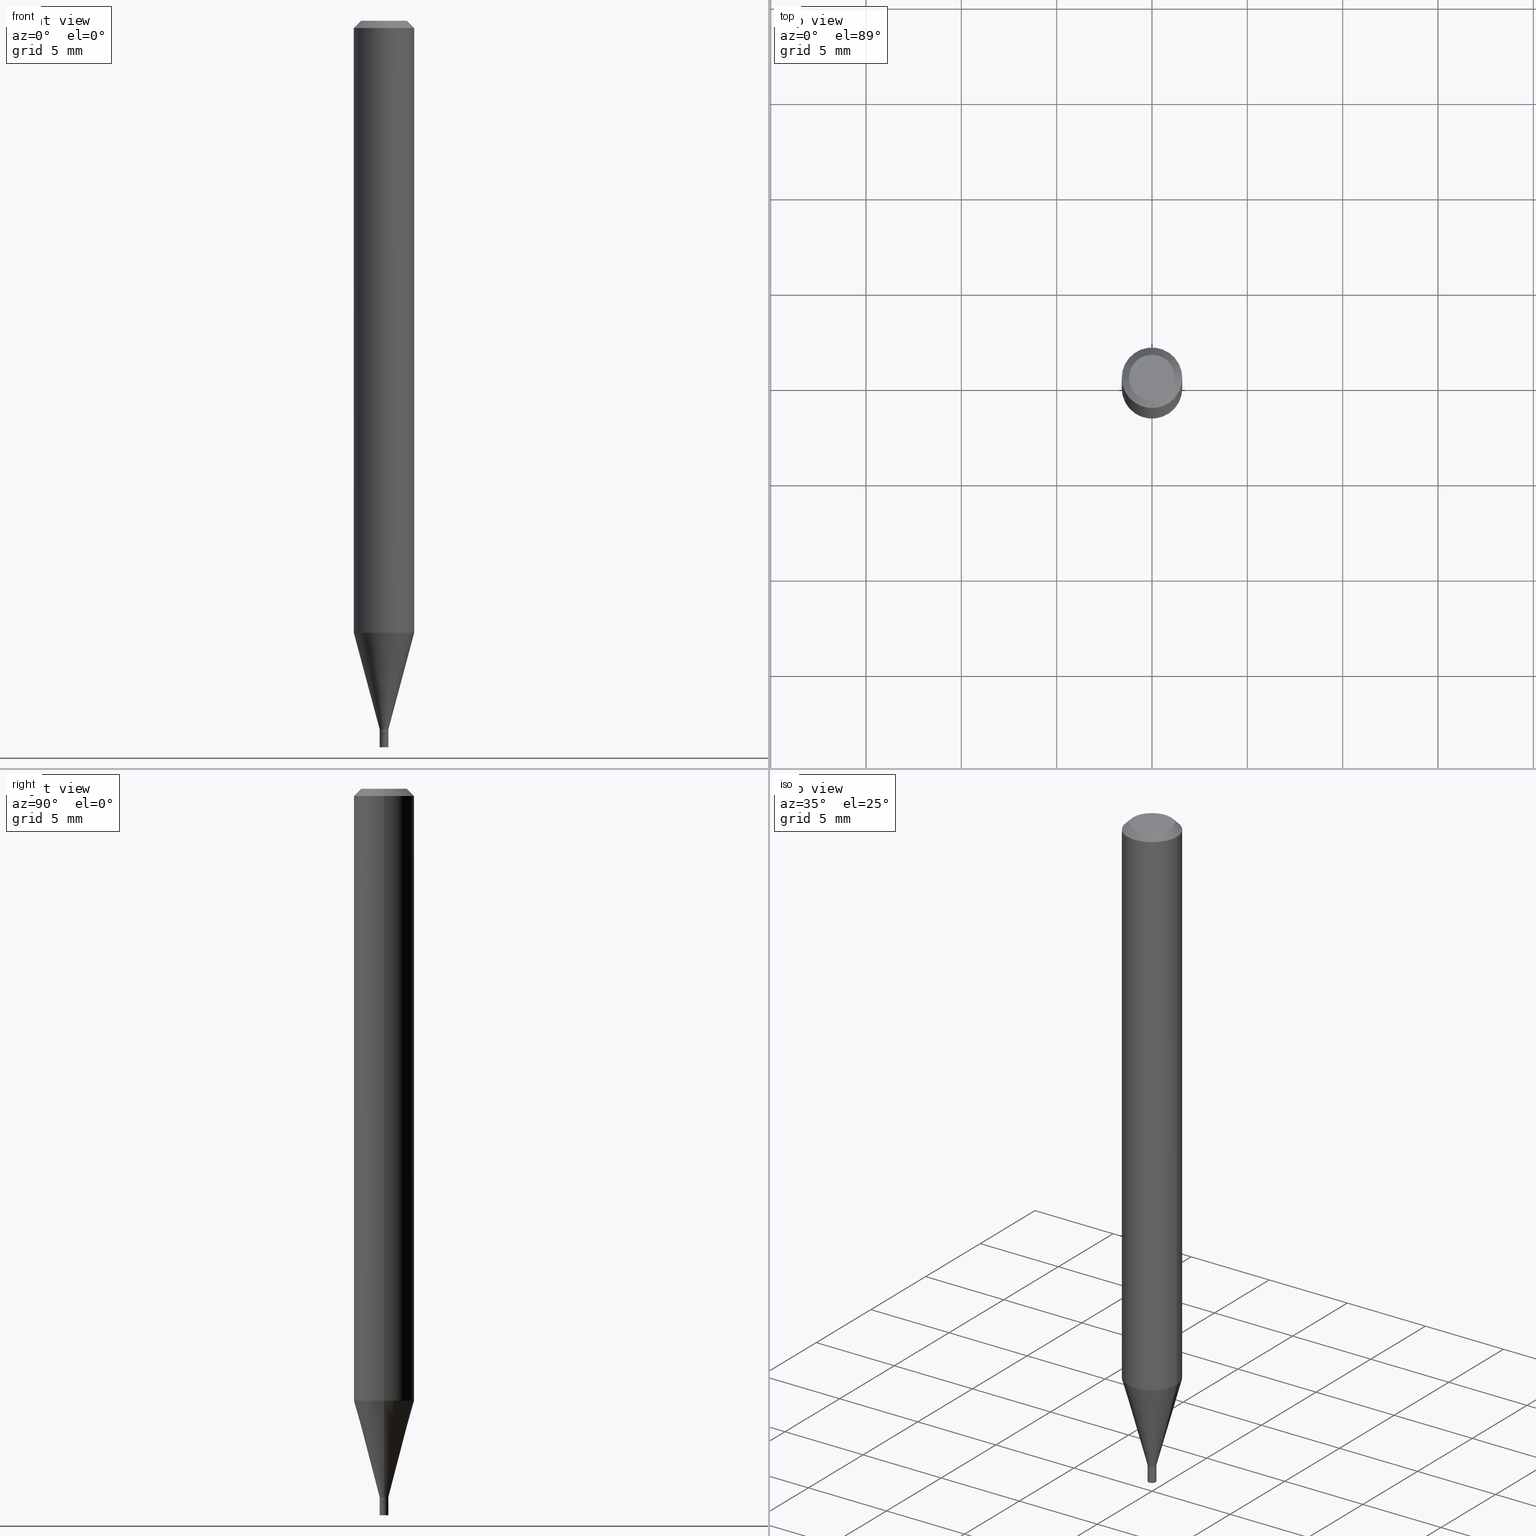
[diagram: canonical four-view strip — front | top / right | iso, engineering-drawing reading convention]
A machine part, canonical four-view strip (front | top / right | iso — engineering-drawing reading convention). The complete STEP part file that produces these views, byte-faithful:
ISO-10303-21;
HEADER;
FILE_DESCRIPTION (( 'STEP AP203' ),
    '1' );
FILE_NAME ('02251.STEP',
    '2024-03-18T19:57:12',
    ( '' ),
    ( '' ),
    'SwSTEP 2.0',
    'SolidWorks 2023',
    '' );
FILE_SCHEMA (( 'CONFIG_CONTROL_DESIGN' ));
ENDSEC;

DATA;
#1 = ORIENTED_EDGE ( 'NONE', *, *, #432, .F. ) ;
#2 = DIRECTION ( 'NONE',  ( -2.445468806185136597E-29, 3.491481338843145583E-15, 1.000000000000000000 ) ) ;
#3 = DIRECTION ( 'NONE',  ( 1.000000000000000000, -6.982962677686276177E-15, 0.000000000000000000 ) ) ;
#4 = DIRECTION ( 'NONE',  ( -1.000000000000000000, 6.982962677686265922E-15, -4.876176775795935793E-29 ) ) ;
#5 = VERTEX_POINT ( 'NONE', #374 ) ;
#6 = DIRECTION ( 'NONE',  ( -2.445468806185136597E-29, 3.491481338843145583E-15, 1.000000000000000000 ) ) ;
#7 = EDGE_CURVE ( 'NONE', #109, #226, #17, .T. ) ;
#8 = VERTEX_POINT ( 'NONE', #448 ) ;
#9 = AXIS2_PLACEMENT_3D ( 'NONE', #424, #153, #295 ) ;
#10 = AXIS2_PLACEMENT_3D ( 'NONE', #135, #131, #338 ) ;
#11 = DIRECTION ( 'NONE',  ( -2.445468806185136597E-29, 3.491481338843145583E-15, 1.000000000000000000 ) ) ;
#12 = ORIENTED_EDGE ( 'NONE', *, *, #249, .F. ) ;
#13 = EDGE_LOOP ( 'NONE', ( #299, #115, #430, #48 ) ) ;
#14 = CARTESIAN_POINT ( 'NONE',  ( 3.602175551510706507E-29, -5.142952012115953829E-15, -1.473000000000000087 ) ) ;
#15 = EDGE_CURVE ( 'NONE', #228, #36, #377, .T. ) ;
#16 = LINE ( 'NONE', #305, #409 ) ;
#17 = LINE ( 'NONE', #22, #402 ) ;
#18 = CARTESIAN_POINT ( 'NONE',  ( 3.602175551510706507E-29, -5.142952012115953829E-15, -1.473000000000000087 ) ) ;
#19 = ORIENTED_EDGE ( 'NONE', *, *, #187, .F. ) ;
#20 = CYLINDRICAL_SURFACE ( 'NONE', #300, 0.008999999999999999320 ) ;
#21 = VERTEX_POINT ( 'NONE', #136 ) ;
#22 = CARTESIAN_POINT ( 'NONE',  ( 0.008999999999999999320, -6.284666409917639645E-17, 4.388559098216341408E-31 ) ) ;
#23 = CALENDAR_DATE ( 2024, 18, 3 ) ;
#24 = AXIS2_PLACEMENT_3D ( 'NONE', #322, #34, #87 ) ;
#25 = DIRECTION ( 'NONE',  ( -2.445468806185136877E-29, 3.491481338843145188E-15, 1.000000000000000000 ) ) ;
#26 = EDGE_LOOP ( 'NONE', ( #321, #76, #117, #78 ) ) ;
#27 = CONICAL_SURFACE ( 'NONE', #375, 0.06250000000000000000, 0.7853981633974193022 ) ;
#28 = DIRECTION ( 'NONE',  ( 1.000000000000000000, 0.000000000000000000, 0.000000000000000000 ) ) ;
#29 = EDGE_CURVE ( 'NONE', #202, #198, #373, .T. ) ;
#30 = CALENDAR_DATE ( 2024, 18, 3 ) ;
#31 = VECTOR ( 'NONE', #113, 39.37007874015748143 ) ;
#32 = CC_DESIGN_APPROVAL ( #150, ( #232 ) ) ;
#33 = ORIENTED_EDGE ( 'NONE', *, *, #93, .T. ) ;
#34 = DIRECTION ( 'NONE',  ( -2.445468806185136597E-29, 3.491481338843145583E-15, 1.000000000000000000 ) ) ;
#35 = ORIENTED_EDGE ( 'NONE', *, *, #15, .F. ) ;
#36 = VERTEX_POINT ( 'NONE', #406 ) ;
#37 = CARTESIAN_POINT ( 'NONE',  ( 0.000000000000000000, 0.000000000000000000, 0.000000000000000000 ) ) ;
#38 = AXIS2_PLACEMENT_3D ( 'NONE', #264, #339, #267 ) ;
#39 = ORIENTED_EDGE ( 'NONE', *, *, #248, .F. ) ;
#40 = ADVANCED_FACE ( 'NONE', ( #60 ), #195, .T. ) ;
#41 = DESIGN_CONTEXT ( 'detailed design', #304, 'design' ) ;
#42 = ADVANCED_FACE ( 'NONE', ( #327 ), #58, .T. ) ;
#43 = CARTESIAN_POINT ( 'NONE',  ( 0.06250000000000000000, -4.847346728445009971E-15, -1.263335281795065601 ) ) ;
#44 = DIRECTION ( 'NONE',  ( 1.000000000000000000, -6.982962677686276177E-15, 0.000000000000000000 ) ) ;
#45 = CARTESIAN_POINT ( 'NONE',  ( 6.284666409921241288E-17, 0.008999999999994855865, -1.473000000000000087 ) ) ;
#46 = ORIENTED_EDGE ( 'NONE', *, *, #354, .T. ) ;
#47 = EDGE_CURVE ( 'NONE', #226, #5, #318, .T. ) ;
#48 = ORIENTED_EDGE ( 'NONE', *, *, #452, .F. ) ;
#49 = DIRECTION ( 'NONE',  ( 1.000000000000000000, -6.982962677686266711E-15, 0.000000000000000000 ) ) ;
#50 = EDGE_CURVE ( 'NONE', #8, #198, #460, .T. ) ;
#51 = VECTOR ( 'NONE', #427, 39.37007874015748143 ) ;
#52 = AXIS2_PLACEMENT_3D ( 'NONE', #55, #302, #308 ) ;
#53 = DIRECTION ( 'NONE',  ( -1.000000000000000000, 6.982962677686266711E-15, 0.000000000000000000 ) ) ;
#54 = CC_DESIGN_PERSON_AND_ORGANIZATION_ASSIGNMENT ( #201, #312, ( #232 ) ) ;
#55 = CARTESIAN_POINT ( 'NONE',  ( 3.668203209277704895E-29, -5.237222008264718177E-15, -1.500000000000000222 ) ) ;
#56 = CIRCLE ( 'NONE', #97, 0.008999999999999919523 ) ;
#57 = EDGE_CURVE ( 'NONE', #333, #202, #453, .T. ) ;
#58 = CONICAL_SURFACE ( 'NONE', #382, 0.008499999999999998876, 0.7853981633974718157 ) ;
#59 = CARTESIAN_POINT ( 'NONE',  ( 0.008499999999999998876, -5.202307194876286528E-15, -1.473000000000000087 ) ) ;
#60 = FACE_OUTER_BOUND ( 'NONE', #359, .T. ) ;
#61 = CYLINDRICAL_SURFACE ( 'NONE', #297, 0.06250000000000000000 ) ;
#62 = DIRECTION ( 'NONE',  ( 0.2588190451025214611, 1.565188264969621573E-15, 0.9659258262890682012 ) ) ;
#63 = CARTESIAN_POINT ( 'NONE',  ( 3.602175551510706507E-29, -5.142952012115953829E-15, -1.473000000000000087 ) ) ;
#64 = APPROVAL_STATUS ( 'not_yet_approved' ) ;
#65 = AXIS2_PLACEMENT_3D ( 'NONE', #317, #169, #314 ) ;
#66 = ORIENTED_EDGE ( 'NONE', *, *, #292, .T. ) ;
#67 =( GEOMETRIC_REPRESENTATION_CONTEXT ( 3 ) GLOBAL_UNCERTAINTY_ASSIGNED_CONTEXT ( ( #145 ) ) GLOBAL_UNIT_ASSIGNED_CONTEXT ( ( #341, #237, #283 ) ) REPRESENTATION_CONTEXT ( 'NONE', 'WORKASPACE' ) );
#68 = PERSON_AND_ORGANIZATION ( #184, #209 ) ;
#69 = ORIENTED_EDGE ( 'NONE', *, *, #105, .F. ) ;
#70 = APPROVAL_ROLE ( '' ) ;
#71 = EDGE_LOOP ( 'NONE', ( #391, #46, #458, #262 ) ) ;
#72 = EDGE_CURVE ( 'NONE', #228, #358, #282, .T. ) ;
#73 = APPROVAL_PERSON_ORGANIZATION ( #416, #337, #200 ) ;
#74 = CARTESIAN_POINT ( 'NONE',  ( -2.134895384516535384E-44, 3.048064803185854466E-30, 8.730004566473750758E-16 ) ) ;
#75 = ORIENTED_EDGE ( 'NONE', *, *, #357, .T. ) ;
#76 = ORIENTED_EDGE ( 'NONE', *, *, #15, .T. ) ;
#77 = LINE ( 'NONE', #429, #51 ) ;
#78 = ORIENTED_EDGE ( 'NONE', *, *, #180, .F. ) ;
#79 = ORIENTED_EDGE ( 'NONE', *, *, #203, .T. ) ;
#80 = CYLINDRICAL_SURFACE ( 'NONE', #334, 0.008999999999999919523 ) ;
#81 = AXIS2_PLACEMENT_3D ( 'NONE', #422, #392, #215 ) ;
#82 = CC_DESIGN_SECURITY_CLASSIFICATION ( #261, ( #232 ) ) ;
#83 = CARTESIAN_POINT ( 'NONE',  ( 3.600952817107613706E-29, -5.141206271446532325E-15, -1.472500000000000142 ) ) ;
#84 = CARTESIAN_POINT ( 'NONE',  ( 3.602175551510706507E-29, -5.142952012115953829E-15, -1.473000000000000087 ) ) ;
#85 = ORIENTED_EDGE ( 'NONE', *, *, #394, .F. ) ;
#86 = ADVANCED_FACE ( 'NONE', ( #164 ), #95, .F. ) ;
#87 = DIRECTION ( 'NONE',  ( 1.000000000000000000, -6.982962677686288010E-15, 0.000000000000000000 ) ) ;
#88 = DIRECTION ( 'NONE',  ( 1.000000000000000000, -6.982962677686225690E-15, 0.000000000000000000 ) ) ;
#89 = CARTESIAN_POINT ( 'NONE',  ( 0.008999999999999921257, -5.204052935545708031E-15, -1.472500000000000142 ) ) ;
#90 = ADVANCED_FACE ( 'NONE', ( #137 ), #61, .T. ) ;
#91 = CIRCLE ( 'NONE', #347, 0.008999999999999921257 ) ;
#92 = DIRECTION ( 'NONE',  ( 1.000000000000000000, -6.982962677686288010E-15, 0.000000000000000000 ) ) ;
#93 = EDGE_CURVE ( 'NONE', #255, #210, #129, .T. ) ;
#94 = LINE ( 'NONE', #234, #99 ) ;
#95 = PLANE ( 'NONE',  #287 ) ;
#96 = DIRECTION ( 'NONE',  ( 1.000000000000000000, -6.982962677686266711E-15, 4.876176775795936914E-29 ) ) ;
#97 = AXIS2_PLACEMENT_3D ( 'NONE', #390, #2, #111 ) ;
#98 = ADVANCED_FACE ( 'NONE', ( #385 ), #208, .T. ) ;
#99 = VECTOR ( 'NONE', #62, 39.37007874015747433 ) ;
#100 = CYLINDRICAL_SURFACE ( 'NONE', #155, 0.008999999999999919523 ) ;
#101 = DIRECTION ( 'NONE',  ( -2.438088387897960049E-29, 3.491481338843145188E-15, 1.000000000000000000 ) ) ;
#102 = DATE_AND_TIME ( #172, #311 ) ;
#103 = DATE_AND_TIME ( #412, #441 ) ;
#104 = DIRECTION ( 'NONE',  ( -2.445468806185136597E-29, 3.491481338843145583E-15, 1.000000000000000000 ) ) ;
#105 = EDGE_CURVE ( 'NONE', #5, #226, #324, .T. ) ;
#106 = PERSON_AND_ORGANIZATION_ROLE ( 'design_owner' ) ;
#107 = VECTOR ( 'NONE', #326, 39.37007874015747433 ) ;
#108 = COORDINATED_UNIVERSAL_TIME_OFFSET ( 5, 0, .BEHIND. ) ;
#109 = VERTEX_POINT ( 'NONE', #148 ) ;
#110 = VERTEX_POINT ( 'NONE', #236 ) ;
#111 = DIRECTION ( 'NONE',  ( 1.000000000000000000, -6.982962677686288010E-15, 0.000000000000000000 ) ) ;
#112 = AXIS2_PLACEMENT_3D ( 'NONE', #83, #225, #257 ) ;
#113 = DIRECTION ( 'NONE',  ( -2.445468806185136877E-29, 3.491481338843145188E-15, 1.000000000000000000 ) ) ;
#114 = LOCAL_TIME ( 15, 57, 12.00000000000000000, #139 ) ;
#115 = ORIENTED_EDGE ( 'NONE', *, *, #284, .T. ) ;
#116 = LINE ( 'NONE', #181, #107 ) ;
#117 = ORIENTED_EDGE ( 'NONE', *, *, #268, .T. ) ;
#118 = DIRECTION ( 'NONE',  ( 1.000000000000000000, -6.982962677686266711E-15, 4.876176775795935793E-29 ) ) ;
#119 = DIRECTION ( 'NONE',  ( 2.438088387897960049E-29, -3.491481338843145188E-15, -1.000000000000000000 ) ) ;
#120 = DIRECTION ( 'NONE',  ( -2.445468806185136877E-29, 3.491481338843145188E-15, 1.000000000000000000 ) ) ;
#121 = ORIENTED_EDGE ( 'NONE', *, *, #292, .F. ) ;
#122 = AXIS2_PLACEMENT_3D ( 'NONE', #45, #119, #4 ) ;
#123 = EDGE_LOOP ( 'NONE', ( #417, #179 ) ) ;
#124 = FACE_OUTER_BOUND ( 'NONE', #461, .T. ) ;
#125 = ORIENTED_EDGE ( 'NONE', *, *, #224, .T. ) ;
#126 = CARTESIAN_POINT ( 'NONE',  ( 3.089447023382941681E-29, -4.410911561089617513E-15, -1.263335281795065601 ) ) ;
#127 = DIRECTION ( 'NONE',  ( 1.000000000000000000, -6.982962677686262766E-15, 0.000000000000000000 ) ) ;
#128 = EDGE_CURVE ( 'NONE', #198, #202, #56, .T. ) ;
#129 = CIRCLE ( 'NONE', #65, 0.06250000000000000000 ) ;
#130 = LOCAL_TIME ( 15, 57, 12.00000000000000000, #316 ) ;
#131 = DIRECTION ( 'NONE',  ( -2.445468806185136597E-29, 3.491481338843145583E-15, 1.000000000000000000 ) ) ;
#132 = ADVANCED_FACE ( 'NONE', ( #286 ), #463, .T. ) ;
#133 = EDGE_CURVE ( 'NONE', #358, #228, #343, .T. ) ;
#134 = MANIFOLD_SOLID_BREP ( 'Body-Move/Copy2[1]', #239 ) ;
#135 = CARTESIAN_POINT ( 'NONE',  ( 3.668203209277704895E-29, -5.237222008264718177E-15, -1.500000000000000222 ) ) ;
#136 = CARTESIAN_POINT ( 'NONE',  ( 0.008499999999999998876, -5.202307194876286528E-15, -1.473000000000000087 ) ) ;
#137 = FACE_OUTER_BOUND ( 'NONE', #199, .T. ) ;
#138 = CARTESIAN_POINT ( 'NONE',  ( 3.602175551510706507E-29, -5.142952012115953829E-15, -1.473000000000000087 ) ) ;
#139 = COORDINATED_UNIVERSAL_TIME_OFFSET ( 5, 0, .BEHIND. ) ;
#140 = PERSON_AND_ORGANIZATION_ROLE ( 'classification_officer' ) ;
#141 = CALENDAR_DATE ( 2024, 18, 3 ) ;
#142 = AXIS2_PLACEMENT_3D ( 'NONE', #380, #194, #276 ) ;
#143 = CC_DESIGN_PERSON_AND_ORGANIZATION_ASSIGNMENT ( #167, #457, ( #232 ) ) ;
#144 = DIRECTION ( 'NONE',  ( 1.000000000000000000, -6.982962677686266711E-15, 4.876176775795936914E-29 ) ) ;
#145 = UNCERTAINTY_MEASURE_WITH_UNIT (LENGTH_MEASURE( 1.000000000000000082E-05 ), #341, 'distance_accuracy_value', 'NONE');
#146 = DIRECTION ( 'NONE',  ( 1.000000000000000000, -6.982962677686286432E-15, 0.000000000000000000 ) ) ;
#147 = CIRCLE ( 'NONE', #269, 0.06250000000000000000 ) ;
#148 = CARTESIAN_POINT ( 'NONE',  ( 0.008999999999999999320, -5.300068672363894672E-15, -1.500000000000000222 ) ) ;
#149 = DIRECTION ( 'NONE',  ( -2.445468806185136597E-29, 3.491481338843145583E-15, 1.000000000000000000 ) ) ;
#150 = APPROVAL ( #449, 'UNSPECIFIED' ) ;
#151 = DIRECTION ( 'NONE',  ( -2.445468806185136597E-29, 3.491481338843145583E-15, 1.000000000000000000 ) ) ;
#152 = ORIENTED_EDGE ( 'NONE', *, *, #187, .T. ) ;
#153 = DIRECTION ( 'NONE',  ( 2.445468806185136597E-29, -3.491481338843145583E-15, -1.000000000000000000 ) ) ;
#154 = ORIENTED_EDGE ( 'NONE', *, *, #284, .F. ) ;
#155 = AXIS2_PLACEMENT_3D ( 'NONE', #404, #376, #96 ) ;
#156 = ORIENTED_EDGE ( 'NONE', *, *, #128, .F. ) ;
#157 = CARTESIAN_POINT ( 'NONE',  ( 0.000000000000000000, 0.000000000000000000, 0.000000000000000000 ) ) ;
#158 = DIRECTION ( 'NONE',  ( -2.445468806185136597E-29, 3.491481338843145583E-15, 1.000000000000000000 ) ) ;
#159 = DIRECTION ( 'NONE',  ( 1.000000000000000000, -6.982962677686266711E-15, 4.876176775795935232E-29 ) ) ;
#160 = VECTOR ( 'NONE', #329, 39.37007874015748143 ) ;
#161 = FACE_OUTER_BOUND ( 'NONE', #431, .T. ) ;
#162 = ADVANCED_FACE ( 'NONE', ( #124 ), #364, .F. ) ;
#163 = PERSON_AND_ORGANIZATION ( #184, #209 ) ;
#164 = FACE_OUTER_BOUND ( 'NONE', #266, .T. ) ;
#165 = VECTOR ( 'NONE', #434, 39.37007874015748143 ) ;
#166 = AXIS2_PLACEMENT_3D ( 'NONE', #444, #301, #92 ) ;
#167 = PERSON_AND_ORGANIZATION ( #184, #209 ) ;
#168 = ORIENTED_EDGE ( 'NONE', *, *, #50, .T. ) ;
#169 = DIRECTION ( 'NONE',  ( -2.445468806185136597E-29, 3.491481338843145583E-15, 1.000000000000000000 ) ) ;
#170 = ADVANCED_FACE ( 'NONE', ( #263 ), #80, .T. ) ;
#171 = APPROVAL_STATUS ( 'not_yet_approved' ) ;
#172 = CALENDAR_DATE ( 2024, 18, 3 ) ;
#173 = ADVANCED_FACE ( 'NONE', ( #256 ), #393, .F. ) ;
#174 = AXIS2_PLACEMENT_3D ( 'NONE', #84, #6, #88 ) ;
#175 = APPROVAL_DATE_TIME ( #309, #337 ) ;
#176 = VECTOR ( 'NONE', #196, 39.37007874015748143 ) ;
#177 = CARTESIAN_POINT ( 'NONE',  ( 0.04749999999999999362, -4.035134999187563339E-16, 8.730004566473775410E-16 ) ) ;
#178 = CARTESIAN_POINT ( 'NONE',  ( -0.008999999999999919523, 6.394884621840844490E-17, -4.427041581229376058E-31 ) ) ;
#179 = ORIENTED_EDGE ( 'NONE', *, *, #72, .T. ) ;
#180 = EDGE_CURVE ( 'NONE', #358, #265, #77, .T. ) ;
#181 = CARTESIAN_POINT ( 'NONE',  ( -0.008999999999999919523, -5.044088352509113895E-15, -1.463000000000000300 ) ) ;
#182 = CIRCLE ( 'NONE', #112, 0.008999999999999921257 ) ;
#183 = CC_DESIGN_DATE_AND_TIME_ASSIGNMENT ( #102, #378, ( #273 ) ) ;
#184 = PERSON ( 'UNSPECIFIED', 'UNSPECIFIED', 'UNSPECIFIED', ('UNSPECIFIED'), ('UNSPECIFIED'), ('UNSPECIFIED') ) ;
#185 = LINE ( 'NONE', #217, #165 ) ;
#186 = CARTESIAN_POINT ( 'NONE',  ( 3.576687321579069994E-29, -5.368277968210015545E-15, -1.500000000000000222 ) ) ;
#187 = EDGE_CURVE ( 'NONE', #255, #36, #399, .T. ) ;
#188 = CARTESIAN_POINT ( 'NONE',  ( 3.668203209277705088E-31, -5.237222008264718399E-17, -0.01499999999999999944 ) ) ;
#189 = VERTEX_POINT ( 'NONE', #356 ) ;
#190 = CIRCLE ( 'NONE', #389, 0.008499999999999998876 ) ;
#191 = DIRECTION ( 'NONE',  ( -2.445468806185136597E-29, 3.491481338843145583E-15, 1.000000000000000000 ) ) ;
#192 = DIRECTION ( 'NONE',  ( -2.445468806185136597E-29, 3.491481338843145583E-15, 1.000000000000000000 ) ) ;
#193 = LENGTH_MEASURE_WITH_UNIT ( LENGTH_MEASURE( 0.02539999999999999897 ), #435 );
#194 = DIRECTION ( 'NONE',  ( -2.445468806185136597E-29, 3.491481338843145583E-15, 1.000000000000000000 ) ) ;
#195 = CONICAL_SURFACE ( 'NONE', #362, 0.008499999999999998876, 0.7853981633974718157 ) ;
#196 = DIRECTION ( 'NONE',  ( 0.7071067811865642261, -2.468850131082431399E-15, 0.7071067811865309194 ) ) ;
#197 = DIRECTION ( 'NONE',  ( -2.445468806185136597E-29, 3.491481338843145583E-15, 1.000000000000000000 ) ) ;
#198 = VERTEX_POINT ( 'NONE', #398 ) ;
#199 = EDGE_LOOP ( 'NONE', ( #213, #66, #152, #12 ) ) ;
#200 = APPROVAL_ROLE ( '' ) ;
#201 = PERSON_AND_ORGANIZATION ( #184, #209 ) ;
#202 = VERTEX_POINT ( 'NONE', #360 ) ;
#203 = EDGE_CURVE ( 'NONE', #333, #8, #182, .T. ) ;
#204 = ADVANCED_FACE ( 'NONE', ( #219 ), #231, .T. ) ;
#205 = COORDINATED_UNIVERSAL_TIME_OFFSET ( 5, 0, .BEHIND. ) ;
#206 = SECURITY_CLASSIFICATION_LEVEL ( 'unclassified' ) ;
#207 = ORIENTED_EDGE ( 'NONE', *, *, #249, .T. ) ;
#208 = CYLINDRICAL_SURFACE ( 'NONE', #81, 0.06250000000000000000 ) ;
#209 = ORGANIZATION ( 'UNSPECIFIED', 'UNSPECIFIED', '' ) ;
#210 = VERTEX_POINT ( 'NONE', #332 ) ;
#211 = CARTESIAN_POINT ( 'NONE',  ( 0.008999999999999919523, -6.284666409917584178E-17, 4.388559098216303748E-31 ) ) ;
#212 = DIRECTION ( 'NONE',  ( 1.000000000000000000, -6.982962677686265922E-15, 4.876176775795935793E-29 ) ) ;
#213 = ORIENTED_EDGE ( 'NONE', *, *, #285, .F. ) ;
#214 = CC_DESIGN_PERSON_AND_ORGANIZATION_ASSIGNMENT ( #68, #278, ( #273 ) ) ;
#215 = DIRECTION ( 'NONE',  ( 1.000000000000000000, -6.982962677686266711E-15, 4.876176775795935793E-29 ) ) ;
#216 = EDGE_LOOP ( 'NONE', ( #79, #168, #451, #442 ) ) ;
#217 = CARTESIAN_POINT ( 'NONE',  ( -0.008499999999999998876, -5.082555879576344865E-15, -1.473000000000000087 ) ) ;
#218 = ORIENTED_EDGE ( 'NONE', *, *, #7, .T. ) ;
#219 = FACE_OUTER_BOUND ( 'NONE', #13, .T. ) ;
#220 = AXIS2_PLACEMENT_3D ( 'NONE', #126, #192, #127 ) ;
#221 = CARTESIAN_POINT ( 'NONE',  ( 3.602175551510706507E-29, -5.142952012115953829E-15, -1.473000000000000087 ) ) ;
#222 = APPROVAL_PERSON_ORGANIZATION ( #446, #150, #70 ) ;
#223 = ORIENTED_EDGE ( 'NONE', *, *, #307, .T. ) ;
#224 = EDGE_CURVE ( 'NONE', #110, #8, #185, .T. ) ;
#225 = DIRECTION ( 'NONE',  ( -2.445468806185136597E-29, 3.491481338843145583E-15, 1.000000000000000000 ) ) ;
#226 = VERTEX_POINT ( 'NONE', #395 ) ;
#227 = DIRECTION ( 'NONE',  ( -2.445468806185136597E-29, 3.491481338843145583E-15, 1.000000000000000000 ) ) ;
#228 = VERTEX_POINT ( 'NONE', #177 ) ;
#229 = LINE ( 'NONE', #59, #176 ) ;
#230 = ORIENTED_EDGE ( 'NONE', *, *, #224, .F. ) ;
#231 = CONICAL_SURFACE ( 'NONE', #24, 0.008999999999999919523, 0.2617993877991501295 ) ;
#232 = PRODUCT_DEFINITION_FORMATION_WITH_SPECIFIED_SOURCE ( 'ANY', '', #455, .NOT_KNOWN. ) ;
#233 = CYLINDRICAL_SURFACE ( 'NONE', #288, 0.008999999999999999320 ) ;
#234 = CARTESIAN_POINT ( 'NONE',  ( 0.008999999999999919523, -5.170883862826698675E-15, -1.463000000000000300 ) ) ;
#235 = DIRECTION ( 'NONE',  ( 1.000000000000000000, -6.982962677686265922E-15, 4.876176775795935793E-29 ) ) ;
#236 = CARTESIAN_POINT ( 'NONE',  ( -0.008499999999999998876, -5.079906652402234453E-15, -1.473000000000000087 ) ) ;
#237 =( NAMED_UNIT ( * ) PLANE_ANGLE_UNIT ( ) SI_UNIT ( $, .RADIAN. ) );
#238 = DIRECTION ( 'NONE',  ( 1.000000000000000000, -6.982962677686288010E-15, 0.000000000000000000 ) ) ;
#239 = CLOSED_SHELL ( 'NONE', ( #425, #173, #348, #162 ) ) ;
#240 = CC_DESIGN_APPROVAL ( #337, ( #273 ) ) ;
#241 = DIRECTION ( 'NONE',  ( -2.445468806185136877E-29, 3.491481338843145188E-15, 1.000000000000000000 ) ) ;
#242 = ORIENTED_EDGE ( 'NONE', *, *, #307, .F. ) ;
#243 = APPLICATION_PROTOCOL_DEFINITION ( 'international standard', 'config_control_design', 1994, #331 ) ;
#244 = DIMENSIONAL_EXPONENTS ( 1.000000000000000000, 0.000000000000000000, 0.000000000000000000, 0.000000000000000000, 0.000000000000000000, 0.000000000000000000, 0.000000000000000000 ) ;
#245 = DATE_TIME_ROLE ( 'classification_date' ) ;
#246 = CIRCLE ( 'NONE', #303, 0.06250000000000000000 ) ;
#247 = DATE_AND_TIME ( #23, #114 ) ;
#248 = EDGE_CURVE ( 'NONE', #8, #333, #91, .T. ) ;
#249 = EDGE_CURVE ( 'NONE', #265, #36, #147, .T. ) ;
#250 = PERSON_AND_ORGANIZATION ( #184, #209 ) ;
#251 = ORIENTED_EDGE ( 'NONE', *, *, #354, .F. ) ;
#252 = AXIS2_PLACEMENT_3D ( 'NONE', #186, #418, #212 ) ;
#253 = CIRCLE ( 'NONE', #52, 0.008999999999999999320 ) ;
#254 = DIRECTION ( 'NONE',  ( 1.000000000000000000, -6.982962677686267499E-15, 4.852736867747366768E-29 ) ) ;
#255 = VERTEX_POINT ( 'NONE', #43 ) ;
#256 = FACE_OUTER_BOUND ( 'NONE', #413, .T. ) ;
#257 = DIRECTION ( 'NONE',  ( 1.000000000000000000, -6.982962677686286432E-15, 0.000000000000000000 ) ) ;
#258 = EDGE_LOOP ( 'NONE', ( #35, #328, #379, #207 ) ) ;
#259 = EDGE_LOOP ( 'NONE', ( #411, #340, #296, #156 ) ) ;
#260 = CARTESIAN_POINT ( 'NONE',  ( 0.06250000000000000000, -4.364351673553916694E-16, 3.047610484872459871E-30 ) ) ;
#261 = SECURITY_CLASSIFICATION ( '', '', #206 ) ;
#262 = ORIENTED_EDGE ( 'NONE', *, *, #7, .F. ) ;
#263 = FACE_OUTER_BOUND ( 'NONE', #216, .T. ) ;
#264 = CARTESIAN_POINT ( 'NONE',  ( 3.316907271900976096E-16, 0.04749999999999999362, 2.706548647286381415E-16 ) ) ;
#265 = VERTEX_POINT ( 'NONE', #368 ) ;
#266 = EDGE_LOOP ( 'NONE', ( #293, #85 ) ) ;
#267 = DIRECTION ( 'NONE',  ( -1.000000000000000000, 6.982962677686265922E-15, -4.876176775795935793E-29 ) ) ;
#268 = EDGE_CURVE ( 'NONE', #36, #265, #246, .T. ) ;
#269 = AXIS2_PLACEMENT_3D ( 'NONE', #188, #149, #459 ) ;
#270 = FACE_OUTER_BOUND ( 'NONE', #259, .T. ) ;
#271 = CARTESIAN_POINT ( 'NONE',  ( -0.04749999999999999362, 3.578768372314226283E-16, 8.730004566473726106E-16 ) ) ;
#272 = CARTESIAN_POINT ( 'NONE',  ( 3.577720863448855523E-29, -5.108037198727522968E-15, -1.463000000000000300 ) ) ;
#273 = PRODUCT_DEFINITION ( 'UNKNOWN', '', #232, #41 ) ;
#274 = FACE_OUTER_BOUND ( 'NONE', #258, .T. ) ;
#275 = AXIS2_PLACEMENT_3D ( 'NONE', #74, #151, #254 ) ;
#276 = DIRECTION ( 'NONE',  ( 1.000000000000000000, -6.982962677686267499E-15, 4.852736867747366768E-29 ) ) ;
#277 = CIRCLE ( 'NONE', #10, 0.008999999999999999320 ) ;
#278 = PERSON_AND_ORGANIZATION_ROLE ( 'creator' ) ;
#279 = PRODUCT_RELATED_PRODUCT_CATEGORY ( 'detail', '', ( #455 ) ) ;
#280 = EDGE_LOOP ( 'NONE', ( #423, #125, #396, #242 ) ) ;
#281 = MECHANICAL_CONTEXT ( 'NONE', #331, 'mechanical' ) ;
#282 = CIRCLE ( 'NONE', #142, 0.04749999999999999362 ) ;
#283 =( NAMED_UNIT ( * ) SI_UNIT ( $, .STERADIAN. ) SOLID_ANGLE_UNIT ( ) );
#284 = EDGE_CURVE ( 'NONE', #198, #210, #116, .T. ) ;
#285 = EDGE_CURVE ( 'NONE', #210, #265, #466, .T. ) ;
#286 = FACE_OUTER_BOUND ( 'NONE', #26, .T. ) ;
#287 = AXIS2_PLACEMENT_3D ( 'NONE', #18, #101, #235 ) ;
#288 = AXIS2_PLACEMENT_3D ( 'NONE', #370, #11, #159 ) ;
#289 = DIRECTION ( 'NONE',  ( -2.445468806185136597E-29, 3.491481338843145583E-15, 1.000000000000000000 ) ) ;
#290 = DIRECTION ( 'NONE',  ( -2.445468806185136597E-29, 3.491481338843145583E-15, 1.000000000000000000 ) ) ;
#291 = CARTESIAN_POINT ( 'NONE',  ( -0.06250000000000000000, 4.440892098500626162E-16, -3.074334431409316114E-30 ) ) ;
#292 = EDGE_CURVE ( 'NONE', #210, #255, #414, .T. ) ;
#293 = ORIENTED_EDGE ( 'NONE', *, *, #437, .F. ) ;
#294 = DIRECTION ( 'NONE',  ( -2.445468806185136597E-29, 3.491481338843145583E-15, 1.000000000000000000 ) ) ;
#295 = DIRECTION ( 'NONE',  ( -1.000000000000000000, 6.982962677686266711E-15, 0.000000000000000000 ) ) ;
#296 = ORIENTED_EDGE ( 'NONE', *, *, #57, .T. ) ;
#297 = AXIS2_PLACEMENT_3D ( 'NONE', #426, #289, #118 ) ;
#298 = DIRECTION ( 'NONE',  ( -2.445468806185136597E-29, 3.491481338843145583E-15, 1.000000000000000000 ) ) ;
#299 = ORIENTED_EDGE ( 'NONE', *, *, #29, .T. ) ;
#300 = AXIS2_PLACEMENT_3D ( 'NONE', #157, #191, #403 ) ;
#301 = DIRECTION ( 'NONE',  ( -2.445468806185136597E-29, 3.491481338843145583E-15, 1.000000000000000000 ) ) ;
#302 = DIRECTION ( 'NONE',  ( -2.445468806185136597E-29, 3.491481338843145583E-15, 1.000000000000000000 ) ) ;
#303 = AXIS2_PLACEMENT_3D ( 'NONE', #366, #290, #49 ) ;
#304 = APPLICATION_CONTEXT ( 'configuration controlled 3d designs of mechanical parts and assemblies' ) ;
#305 = CARTESIAN_POINT ( 'NONE',  ( -0.008999999999999999320, 6.394884621840901190E-17, -4.427041581229414594E-31 ) ) ;
#306 = CARTESIAN_POINT ( 'NONE',  ( 0.06250000000000000000, -4.811533449433679005E-16, -0.01499999999999999944 ) ) ;
#307 = EDGE_CURVE ( 'NONE', #21, #333, #229, .T. ) ;
#308 = DIRECTION ( 'NONE',  ( 1.000000000000000000, -6.982962677686225690E-15, 0.000000000000000000 ) ) ;
#309 = DATE_AND_TIME ( #30, #130 ) ;
#310 = VECTOR ( 'NONE', #120, 39.37007874015748143 ) ;
#311 = LOCAL_TIME ( 15, 57, 12.00000000000000000, #108 ) ;
#312 = PERSON_AND_ORGANIZATION_ROLE ( 'design_supplier' ) ;
#313 = DIRECTION ( 'NONE',  ( -2.445468806185136877E-29, 3.491481338843145188E-15, 1.000000000000000000 ) ) ;
#314 = DIRECTION ( 'NONE',  ( 1.000000000000000000, -6.982962677686262766E-15, 0.000000000000000000 ) ) ;
#315 = DATE_AND_TIME ( #141, #336 ) ;
#316 = COORDINATED_UNIVERSAL_TIME_OFFSET ( 5, 0, .BEHIND. ) ;
#317 = CARTESIAN_POINT ( 'NONE',  ( 3.089447023382941681E-29, -4.410911561089617513E-15, -1.263335281795065601 ) ) ;
#318 = CIRCLE ( 'NONE', #174, 0.008999999999999999320 ) ;
#319 = APPROVAL_PERSON_ORGANIZATION ( #381, #355, #350 ) ;
#320 = SHAPE_DEFINITION_REPRESENTATION ( #384, #419 ) ;
#321 = ORIENTED_EDGE ( 'NONE', *, *, #72, .F. ) ;
#322 = CARTESIAN_POINT ( 'NONE',  ( 3.577720863448855523E-29, -5.108037198727522968E-15, -1.463000000000000300 ) ) ;
#323 = ORIENTED_EDGE ( 'NONE', *, *, #105, .T. ) ;
#324 = CIRCLE ( 'NONE', #420, 0.008999999999999999320 ) ;
#325 = CC_DESIGN_APPROVAL ( #355, ( #261 ) ) ;
#326 = DIRECTION ( 'NONE',  ( -0.2588190451025214611, 5.211531920934551042E-15, 0.9659258262890682012 ) ) ;
#327 = FACE_OUTER_BOUND ( 'NONE', #280, .T. ) ;
#328 = ORIENTED_EDGE ( 'NONE', *, *, #133, .F. ) ;
#329 = DIRECTION ( 'NONE',  ( -2.445468806185136877E-29, 3.491481338843145188E-15, 1.000000000000000000 ) ) ;
#330 = CC_DESIGN_DATE_AND_TIME_ASSIGNMENT ( #103, #245, ( #261 ) ) ;
#331 = APPLICATION_CONTEXT ( 'configuration controlled 3d designs of mechanical parts and assemblies' ) ;
#332 = CARTESIAN_POINT ( 'NONE',  ( -0.06250000000000000000, -3.966822351239554897E-15, -1.263335281795065601 ) ) ;
#333 = VERTEX_POINT ( 'NONE', #89 ) ;
#334 = AXIS2_PLACEMENT_3D ( 'NONE', #37, #298, #144 ) ;
#335 = EDGE_LOOP ( 'NONE', ( #251, #75, #218, #69 ) ) ;
#336 = LOCAL_TIME ( 15, 57, 12.00000000000000000, #349 ) ;
#337 = APPROVAL ( #171, 'UNSPECIFIED' ) ;
#338 = DIRECTION ( 'NONE',  ( 1.000000000000000000, -6.982962677686225690E-15, 0.000000000000000000 ) ) ;
#339 = DIRECTION ( 'NONE',  ( 2.438088387897960049E-29, -3.491481338843145188E-15, -1.000000000000000000 ) ) ;
#340 = ORIENTED_EDGE ( 'NONE', *, *, #248, .T. ) ;
#341 =( CONVERSION_BASED_UNIT ( 'INCH', #193 ) LENGTH_UNIT ( ) NAMED_UNIT ( #244 ) );
#342 = ADVANCED_FACE ( 'NONE', ( #369 ), #344, .F. ) ;
#343 = CIRCLE ( 'NONE', #275, 0.04749999999999999362 ) ;
#344 = PLANE ( 'NONE',  #38 ) ;
#345 = CARTESIAN_POINT ( 'NONE',  ( 0.000000000000000000, 0.000000000000000000, 0.000000000000000000 ) ) ;
#346 = APPLICATION_PROTOCOL_DEFINITION ( 'international standard', 'config_control_design', 1994, #304 ) ;
#347 = AXIS2_PLACEMENT_3D ( 'NONE', #462, #227, #146 ) ;
#348 = ADVANCED_FACE ( 'NONE', ( #401 ), #20, .T. ) ;
#349 = COORDINATED_UNIVERSAL_TIME_OFFSET ( 5, 0, .BEHIND. ) ;
#350 = APPROVAL_ROLE ( '' ) ;
#351 = CC_DESIGN_PERSON_AND_ORGANIZATION_ASSIGNMENT ( #163, #106, ( #455 ) ) ;
#352 = CONICAL_SURFACE ( 'NONE', #166, 0.008999999999999919523, 0.2617993877991501295 ) ;
#353 = ORIENTED_EDGE ( 'NONE', *, *, #285, .T. ) ;
#354 = EDGE_CURVE ( 'NONE', #189, #5, #16, .T. ) ;
#355 = APPROVAL ( #64, 'UNSPECIFIED' ) ;
#356 = CARTESIAN_POINT ( 'NONE',  ( -0.008999999999999999320, -5.126138163971927718E-15, -1.500000000000000222 ) ) ;
#357 = EDGE_CURVE ( 'NONE', #189, #109, #277, .T. ) ;
#358 = VERTEX_POINT ( 'NONE', #271 ) ;
#359 = EDGE_LOOP ( 'NONE', ( #230, #433, #223, #39 ) ) ;
#360 = CARTESIAN_POINT ( 'NONE',  ( 0.008999999999999919523, -5.170883862826698675E-15, -1.463000000000000300 ) ) ;
#361 = ORIENTED_EDGE ( 'NONE', *, *, #128, .T. ) ;
#362 = AXIS2_PLACEMENT_3D ( 'NONE', #63, #197, #3 ) ;
#363 = ORIENTED_EDGE ( 'NONE', *, *, #47, .T. ) ;
#364 = PLANE ( 'NONE',  #122 ) ;
#365 = EDGE_LOOP ( 'NONE', ( #33, #353, #421, #19 ) ) ;
#366 = CARTESIAN_POINT ( 'NONE',  ( 3.668203209277705088E-31, -5.237222008264718399E-17, -0.01499999999999999944 ) ) ;
#367 = ORIENTED_EDGE ( 'NONE', *, *, #452, .T. ) ;
#368 = CARTESIAN_POINT ( 'NONE',  ( -0.06250000000000000000, -1.787552680736069877E-15, -0.01499999999999999944 ) ) ;
#369 = FACE_OUTER_BOUND ( 'NONE', #123, .T. ) ;
#370 = CARTESIAN_POINT ( 'NONE',  ( 0.000000000000000000, 0.000000000000000000, 0.000000000000000000 ) ) ;
#371 = ADVANCED_FACE ( 'NONE', ( #274 ), #27, .T. ) ;
#372 = DIRECTION ( 'NONE',  ( 1.000000000000000000, -6.982962677686276177E-15, 0.000000000000000000 ) ) ;
#373 = CIRCLE ( 'NONE', #388, 0.008999999999999919523 ) ;
#374 = CARTESIAN_POINT ( 'NONE',  ( -0.008999999999999999320, -5.126138163971927718E-15, -1.473000000000000087 ) ) ;
#375 = AXIS2_PLACEMENT_3D ( 'NONE', #405, #445, #53 ) ;
#376 = DIRECTION ( 'NONE',  ( -2.445468806185136597E-29, 3.491481338843145583E-15, 1.000000000000000000 ) ) ;
#377 = LINE ( 'NONE', #306, #408 ) ;
#378 = DATE_TIME_ROLE ( 'creation_date' ) ;
#379 = ORIENTED_EDGE ( 'NONE', *, *, #180, .T. ) ;
#380 = CARTESIAN_POINT ( 'NONE',  ( -2.134895384516535384E-44, 3.048064803185854466E-30, 8.730004566473750758E-16 ) ) ;
#381 = PERSON_AND_ORGANIZATION ( #184, #209 ) ;
#382 = AXIS2_PLACEMENT_3D ( 'NONE', #221, #400, #44 ) ;
#383 = APPROVAL_DATE_TIME ( #247, #150 ) ;
#384 = PRODUCT_DEFINITION_SHAPE ( 'NONE', 'NONE',  #273 ) ;
#385 = FACE_OUTER_BOUND ( 'NONE', #365, .T. ) ;
#386 = CARTESIAN_POINT ( 'NONE',  ( 3.602175551510706507E-29, -5.142952012115953829E-15, -1.473000000000000087 ) ) ;
#387 = ORIENTED_EDGE ( 'NONE', *, *, #357, .F. ) ;
#388 = AXIS2_PLACEMENT_3D ( 'NONE', #272, #104, #238 ) ;
#389 = AXIS2_PLACEMENT_3D ( 'NONE', #14, #158, #372 ) ;
#390 = CARTESIAN_POINT ( 'NONE',  ( 3.577720863448855523E-29, -5.108037198727522968E-15, -1.463000000000000300 ) ) ;
#391 = ORIENTED_EDGE ( 'NONE', *, *, #432, .T. ) ;
#392 = DIRECTION ( 'NONE',  ( -2.445468806185136597E-29, 3.491481338843145583E-15, 1.000000000000000000 ) ) ;
#393 = PLANE ( 'NONE',  #252 ) ;
#394 = EDGE_CURVE ( 'NONE', #110, #21, #190, .T. ) ;
#395 = CARTESIAN_POINT ( 'NONE',  ( 0.008999999999999999320, -5.205798676215129535E-15, -1.473000000000000087 ) ) ;
#396 = ORIENTED_EDGE ( 'NONE', *, *, #203, .F. ) ;
#397 = AXIS2_PLACEMENT_3D ( 'NONE', #345, #410, #28 ) ;
#398 = CARTESIAN_POINT ( 'NONE',  ( -0.008999999999999919523, -4.505455351874334790E-15, -1.463000000000000300 ) ) ;
#399 = LINE ( 'NONE', #260, #310 ) ;
#400 = DIRECTION ( 'NONE',  ( -2.445468806185136597E-29, 3.491481338843145583E-15, 1.000000000000000000 ) ) ;
#401 = FACE_OUTER_BOUND ( 'NONE', #335, .T. ) ;
#402 = VECTOR ( 'NONE', #25, 39.37007874015748143 ) ;
#403 = DIRECTION ( 'NONE',  ( 1.000000000000000000, -6.982962677686266711E-15, 4.876176775795935232E-29 ) ) ;
#404 = CARTESIAN_POINT ( 'NONE',  ( 0.000000000000000000, 0.000000000000000000, 0.000000000000000000 ) ) ;
#405 = CARTESIAN_POINT ( 'NONE',  ( 3.668203209277705088E-31, -5.237222008264718399E-17, -0.01499999999999999944 ) ) ;
#406 = CARTESIAN_POINT ( 'NONE',  ( 0.06250000000000000000, -4.888073874380388472E-16, -0.01499999999999999944 ) ) ;
#407 = DIRECTION ( 'NONE',  ( 1.000000000000000000, -6.982962677686276177E-15, 0.000000000000000000 ) ) ;
#408 = VECTOR ( 'NONE', #450, 39.37007874015748143 ) ;
#409 = VECTOR ( 'NONE', #241, 39.37007874015748143 ) ;
#410 = DIRECTION ( 'NONE',  ( 0.000000000000000000, 0.000000000000000000, 1.000000000000000000 ) ) ;
#411 = ORIENTED_EDGE ( 'NONE', *, *, #50, .F. ) ;
#412 = CALENDAR_DATE ( 2024, 18, 3 ) ;
#413 = EDGE_LOOP ( 'NONE', ( #1, #387 ) ) ;
#414 = CIRCLE ( 'NONE', #220, 0.06250000000000000000 ) ;
#415 = ADVANCED_FACE ( 'NONE', ( #161 ), #352, .T. ) ;
#416 = PERSON_AND_ORGANIZATION ( #184, #209 ) ;
#417 = ORIENTED_EDGE ( 'NONE', *, *, #133, .T. ) ;
#418 = DIRECTION ( 'NONE',  ( -2.438088387897960049E-29, 3.491481338843145188E-15, 1.000000000000000000 ) ) ;
#419 = ADVANCED_BREP_SHAPE_REPRESENTATION ( '02251', ( #134, #428, #397 ), #67 ) ;
#420 = AXIS2_PLACEMENT_3D ( 'NONE', #386, #294, #465 ) ;
#421 = ORIENTED_EDGE ( 'NONE', *, *, #268, .F. ) ;
#422 = CARTESIAN_POINT ( 'NONE',  ( 0.000000000000000000, 0.000000000000000000, 0.000000000000000000 ) ) ;
#423 = ORIENTED_EDGE ( 'NONE', *, *, #437, .T. ) ;
#424 = CARTESIAN_POINT ( 'NONE',  ( 3.668203209277705088E-31, -5.237222008264718399E-17, -0.01499999999999999944 ) ) ;
#425 = ADVANCED_FACE ( 'NONE', ( #438 ), #233, .T. ) ;
#426 = CARTESIAN_POINT ( 'NONE',  ( 0.000000000000000000, 0.000000000000000000, 0.000000000000000000 ) ) ;
#427 = DIRECTION ( 'NONE',  ( -0.7071067811865270336, 2.468850131082042096E-15, -0.7071067811865680008 ) ) ;
#428 = MANIFOLD_SOLID_BREP ( 'Body-Move/Copy2[2]', #439 ) ;
#429 = CARTESIAN_POINT ( 'NONE',  ( -0.06250000000000000000, 3.840629472727444916E-16, -0.01499999999999999944 ) ) ;
#430 = ORIENTED_EDGE ( 'NONE', *, *, #93, .F. ) ;
#431 = EDGE_LOOP ( 'NONE', ( #154, #361, #367, #121 ) ) ;
#432 = EDGE_CURVE ( 'NONE', #109, #189, #253, .T. ) ;
#433 = ORIENTED_EDGE ( 'NONE', *, *, #394, .T. ) ;
#434 = DIRECTION ( 'NONE',  ( -0.7071067811865642261, 7.493145998870414114E-15, 0.7071067811865309194 ) ) ;
#435 =( LENGTH_UNIT ( ) NAMED_UNIT ( * ) SI_UNIT ( $, .METRE. ) );
#436 = CC_DESIGN_PERSON_AND_ORGANIZATION_ASSIGNMENT ( #250, #140, ( #261 ) ) ;
#437 = EDGE_CURVE ( 'NONE', #21, #110, #464, .T. ) ;
#438 = FACE_OUTER_BOUND ( 'NONE', #71, .T. ) ;
#439 = CLOSED_SHELL ( 'NONE', ( #170, #42, #132, #98, #204, #415, #90, #371, #342, #86, #40, #443 ) ) ;
#440 = DIRECTION ( 'NONE',  ( -2.445468806185136597E-29, 3.491481338843145583E-15, 1.000000000000000000 ) ) ;
#441 = LOCAL_TIME ( 15, 57, 12.00000000000000000, #205 ) ;
#442 = ORIENTED_EDGE ( 'NONE', *, *, #57, .F. ) ;
#443 = ADVANCED_FACE ( 'NONE', ( #270 ), #100, .T. ) ;
#444 = CARTESIAN_POINT ( 'NONE',  ( 3.577720863448855523E-29, -5.108037198727522968E-15, -1.463000000000000300 ) ) ;
#445 = DIRECTION ( 'NONE',  ( 2.445468806185136597E-29, -3.491481338843145583E-15, -1.000000000000000000 ) ) ;
#446 = PERSON_AND_ORGANIZATION ( #184, #209 ) ;
#447 = VECTOR ( 'NONE', #313, 39.37007874015748143 ) ;
#448 = CARTESIAN_POINT ( 'NONE',  ( -0.008999999999999921257, -5.077257425228123251E-15, -1.472500000000000142 ) ) ;
#449 = APPROVAL_STATUS ( 'not_yet_approved' ) ;
#450 = DIRECTION ( 'NONE',  ( 0.7071067811865270336, -7.319954787623186626E-15, -0.7071067811865680008 ) ) ;
#451 = ORIENTED_EDGE ( 'NONE', *, *, #29, .F. ) ;
#452 = EDGE_CURVE ( 'NONE', #202, #255, #94, .T. ) ;
#453 = LINE ( 'NONE', #211, #447 ) ;
#454 = APPROVAL_DATE_TIME ( #315, #355 ) ;
#455 = PRODUCT ( '02251', '02251', '', ( #281 ) ) ;
#456 = AXIS2_PLACEMENT_3D ( 'NONE', #138, #440, #407 ) ;
#457 = PERSON_AND_ORGANIZATION_ROLE ( 'creator' ) ;
#458 = ORIENTED_EDGE ( 'NONE', *, *, #47, .F. ) ;
#459 = DIRECTION ( 'NONE',  ( 1.000000000000000000, -6.982962677686266711E-15, 0.000000000000000000 ) ) ;
#460 = LINE ( 'NONE', #178, #31 ) ;
#461 = EDGE_LOOP ( 'NONE', ( #363, #323 ) ) ;
#462 = CARTESIAN_POINT ( 'NONE',  ( 3.600952817107613706E-29, -5.141206271446532325E-15, -1.472500000000000142 ) ) ;
#463 = CONICAL_SURFACE ( 'NONE', #9, 0.06250000000000000000, 0.7853981633974193022 ) ;
#464 = CIRCLE ( 'NONE', #456, 0.008499999999999998876 ) ;
#465 = DIRECTION ( 'NONE',  ( 1.000000000000000000, -6.982962677686225690E-15, 0.000000000000000000 ) ) ;
#466 = LINE ( 'NONE', #291, #160 ) ;
ENDSEC;
END-ISO-10303-21;
